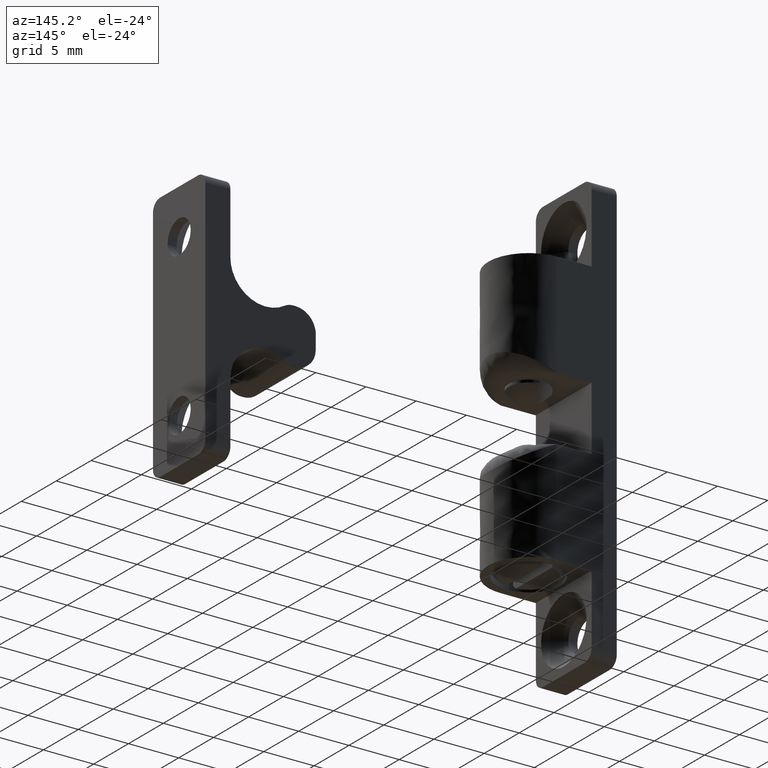
[diagram: clean part render]
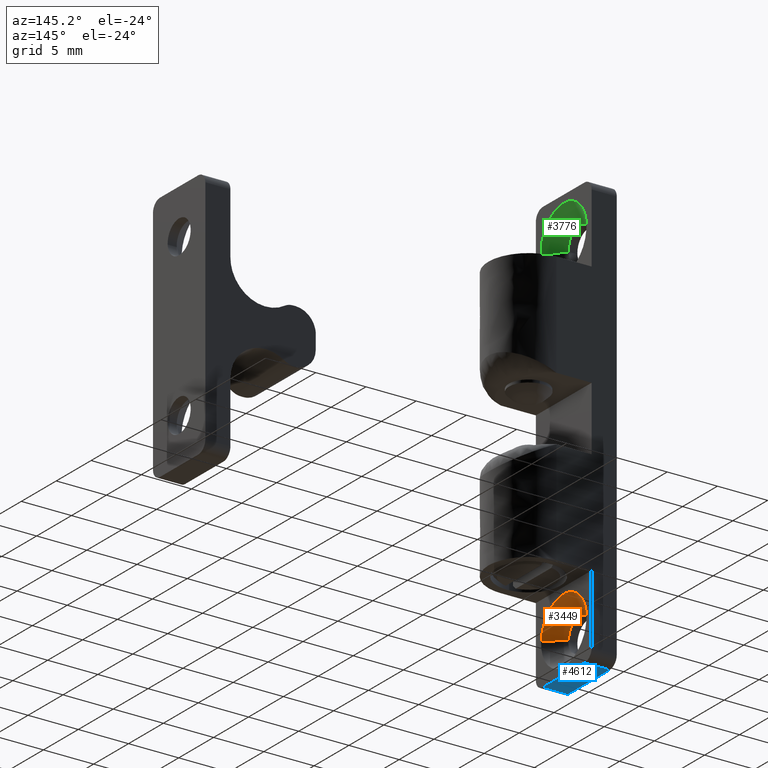
[diagram: same view with three faces highlighted in distinct colors, each labeled with its STEP entity id]
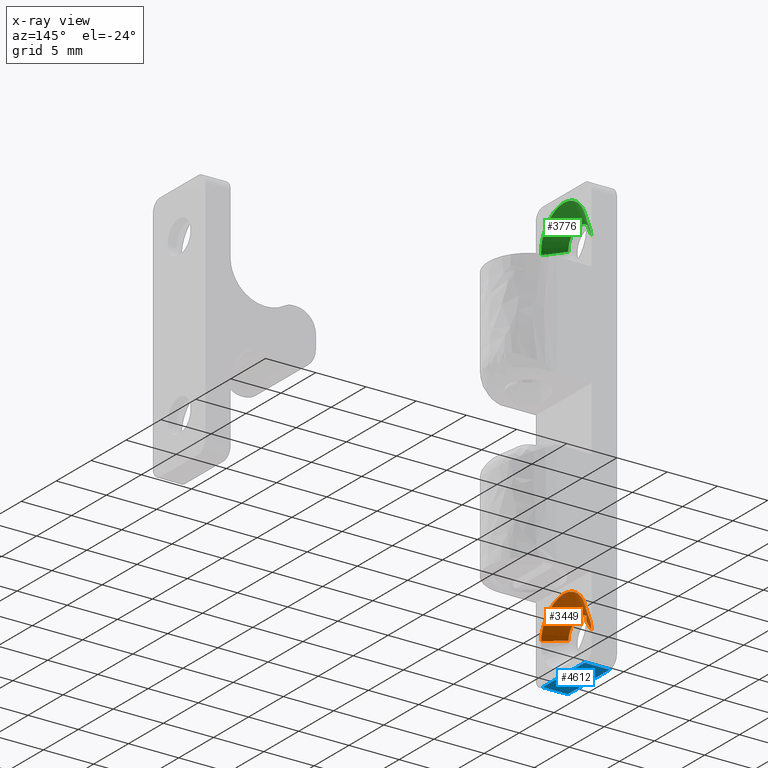
[diagram: x-ray of the same camera — body ghosted, the three highlighted faces saturated]
A machine part, auxiliary view with three faces highlighted in distinct colors.
The next image is the same camera in x-ray (body ghosted, the three faces saturated) — at least one of them is partly hidden behind the body in this view.
Their STEP definitions:

[orange] entity #3449 — the highlighted face is a freeform B-spline surface patch.
#3183=CARTESIAN_POINT('',(17.694756487253780,1.638465718500732,0.900000000008982));
#3184=VERTEX_POINT('',#3183);
#3185=CARTESIAN_POINT('',(16.108983919377160,0.887453809191597,0.900000000000026));
#3186=VERTEX_POINT('',#3185);
#3187=CARTESIAN_POINT('',(17.694756487253777,1.638465718500733,0.900000000008982));
#3188=CARTESIAN_POINT('',(17.597719797495454,1.650000000000000,0.900000000000026));
#3189=CARTESIAN_POINT('',(17.500000000000000,1.650000000000000,0.900000000000026));
#3190=CARTESIAN_POINT('',(16.595480467584000,1.650000000000000,0.900000000000026));
#3191=CARTESIAN_POINT('',(16.108983919377163,0.887453809191597,0.900000000000026));
#3199=(BOUNDED_CURVE()B_SPLINE_CURVE(2,(#3187,#3188,#3189,#3190,#3191),.UNSPECIFIED.,.F.,.U.)B_SPLINE_CURVE_WITH_KNOTS((3,2,3),(0.229562473501395,0.250000000000000,0.407950112626393),.UNSPECIFIED.)CURVE()GEOMETRIC_REPRESENTATION_ITEM()RATIONAL_B_SPLINE_CURVE((0.956026754159957,0.976055948316954,1.0,0.814949932403634,0.863729296954209))REPRESENTATION_ITEM(''));
#3200=EDGE_CURVE('',#3184,#3186,#3199,.T.);
#3243=CARTESIAN_POINT('',(17.370542492015389,-1.644913600657012,0.900000000000026));
#3244=VERTEX_POINT('',#3243);
#3250=CARTESIAN_POINT('',(17.399269909718932,-1.646922417399449,0.900000000006353));
#3251=VERTEX_POINT('',#3250);
#3252=CARTESIAN_POINT('',(17.370542492015396,-1.644913600657012,0.900000000000026));
#3253=CARTESIAN_POINT('',(17.384897435487410,-1.646043359210222,0.900000000000026));
#3254=CARTESIAN_POINT('',(17.399269909718925,-1.646922417399449,0.900000000006353));
#3262=(BOUNDED_CURVE()B_SPLINE_CURVE(2,(#3252,#3253,#3254),.UNSPECIFIED.,.F.,.U.)B_SPLINE_CURVE_WITH_KNOTS((3,3),(0.736331300625751,0.739332962231874),.UNSPECIFIED.)CURVE()GEOMETRIC_REPRESENTATION_ITEM()RATIONAL_B_SPLINE_CURVE((0.969723356157174,0.972855475547299,0.976072041651568))REPRESENTATION_ITEM(''));
#3263=EDGE_CURVE('',#3244,#3251,#3262,.T.);
#3316=CARTESIAN_POINT('',(15.850000000000000,0.0,0.900000000000026));
#3317=VERTEX_POINT('',#3316);
#3318=CARTESIAN_POINT('',(16.108983919377160,0.887453809191597,0.900000000000026));
#3319=CARTESIAN_POINT('',(15.850000000000005,0.481516291382688,0.900000000000026));
#3320=CARTESIAN_POINT('',(15.850000000000000,0.0,0.900000000000026));
#3328=(BOUNDED_CURVE()B_SPLINE_CURVE(2,(#3318,#3319,#3320),.UNSPECIFIED.,.F.,.U.)B_SPLINE_CURVE_WITH_KNOTS((3,3),(0.407950112626393,0.500000000000000),.UNSPECIFIED.)CURVE()GEOMETRIC_REPRESENTATION_ITEM()RATIONAL_B_SPLINE_CURVE((0.863729296954209,0.892156848782914,1.0))REPRESENTATION_ITEM(''));
#3329=EDGE_CURVE('',#3186,#3317,#3328,.T.);
#3331=CARTESIAN_POINT('',(15.850000000000000,0.0,0.900000000000026));
#3332=CARTESIAN_POINT('',(15.850000000000003,-1.525244311173431,0.900000000000026));
#3333=CARTESIAN_POINT('',(17.370542492015392,-1.644913600657012,0.900000000000026));
#3341=(BOUNDED_CURVE()B_SPLINE_CURVE(2,(#3331,#3332,#3333),.UNSPECIFIED.,.F.,.U.)B_SPLINE_CURVE_WITH_KNOTS((3,3),(0.500000000000000,0.736331300625752),.UNSPECIFIED.)CURVE()GEOMETRIC_REPRESENTATION_ITEM()RATIONAL_B_SPLINE_CURVE((1.0,0.723120658613416,0.969723356157175))REPRESENTATION_ITEM(''));
#3342=EDGE_CURVE('',#3317,#3244,#3341,.T.);
#3377=CARTESIAN_POINT('',(17.690035117797375,1.598745337445504,0.860000000000027));
#3378=CARTESIAN_POINT('',(17.644279713107142,1.604184060872256,0.860000000000027));
#3379=CARTESIAN_POINT('',(17.598288148651118,1.606997025459206,0.860000000000027));
#3380=CARTESIAN_POINT('',(15.991291123191921,1.705285174110326,0.860000000000027));
#3381=CARTESIAN_POINT('',(15.893002974540790,0.098288148651120,0.860000000000027));
#3382=CARTESIAN_POINT('',(15.794714825889677,-1.508708876808086,0.860000000000027));
#3383=CARTESIAN_POINT('',(17.401711851348882,-1.606997025459206,0.860000000000027));
#3384=CARTESIAN_POINT('',(17.888450666255398,3.267994351262798,2.541000000000000));
#3385=CARTESIAN_POINT('',(17.794922071947582,3.279111642441333,2.541000000000000));
#3386=CARTESIAN_POINT('',(17.700910743609210,3.284861621606335,2.541000000000000));
#3387=CARTESIAN_POINT('',(14.416049122002878,3.485772365215548,2.541000000000000));
#3388=CARTESIAN_POINT('',(14.215138378393659,0.200910743609213,2.541000000000000));
#3389=CARTESIAN_POINT('',(14.014227634784451,-3.083950877997122,2.541000000000000));
#3390=CARTESIAN_POINT('',(17.299089256390790,-3.284861621606335,2.541000000000000));
#3398=(BOUNDED_SURFACE()B_SPLINE_SURFACE(2,1,((#3377,#3384),(#3378,#3385),(#3379,#3386),(#3380,#3387),(#3381,#3388),(#3382,#3389),(#3383,#3390)),.UNSPECIFIED.,.F.,.F.,.U.)B_SPLINE_SURFACE_WITH_KNOTS((3,2,2,3),(2,2),(0.0,0.218108293403175,5.670815628482552,11.123522963561930),(0.0,2.377292998349134),.UNSPECIFIED.)GEOMETRIC_REPRESENTATION_ITEM()RATIONAL_B_SPLINE_SURFACE(((0.977505800795127,0.977505800795127),(0.988284271247462,0.988284271247462),(1.0,1.0),(0.707106781186548,0.707106781186548),(1.0,1.0),(0.707106781186548,0.707106781186548),(1.0,1.0)))REPRESENTATION_ITEM('')SURFACE());
#3399=ORIENTED_EDGE('',*,*,#3200,.F.);
#3400=CARTESIAN_POINT('',(17.883611262849730,3.227280960683632,2.500000000027127));
#3401=VERTEX_POINT('',#3400);
#3402=CARTESIAN_POINT('',(17.694756487253780,1.638465718500732,0.900000000008982));
#3403=CARTESIAN_POINT('',(17.883611262849730,3.227280960683632,2.500000000027127));
#3404=QUASI_UNIFORM_CURVE('',1,(#3402,#3403),.UNSPECIFIED.,.F.,.U.);
#3405=EDGE_CURVE('',#3184,#3401,#3404,.T.);
#3406=ORIENTED_EDGE('',*,*,#3405,.T.);
#3407=CARTESIAN_POINT('',(14.250000000000000,0.0,2.500000000000000));
#3408=VERTEX_POINT('',#3407);
#3409=CARTESIAN_POINT('',(17.883611262849733,3.227280960683632,2.500000000027127));
#3410=CARTESIAN_POINT('',(17.692478389083014,3.250000000000000,2.500000000000000));
#3411=CARTESIAN_POINT('',(17.500000000000000,3.250000000000000,2.500000000000000));
#3412=CARTESIAN_POINT('',(14.249999999999998,3.250000000000000,2.500000000000000));
#3413=CARTESIAN_POINT('',(14.250000000000000,0.0,2.500000000000000));
#3421=(BOUNDED_CURVE()B_SPLINE_CURVE(2,(#3409,#3410,#3411,#3412,#3413),.UNSPECIFIED.,.F.,.U.)B_SPLINE_CURVE_WITH_KNOTS((3,2,3),(0.229562473493434,0.250000000000000,0.500000000000000),.UNSPECIFIED.)CURVE()GEOMETRIC_REPRESENTATION_ITEM()RATIONAL_B_SPLINE_CURVE((0.956026754144353,0.976055948307627,1.0,0.707106781186547,1.0))REPRESENTATION_ITEM(''));
#3422=EDGE_CURVE('',#3401,#3408,#3421,.T.);
#3423=ORIENTED_EDGE('',*,*,#3422,.T.);
#3424=CARTESIAN_POINT('',(17.301592246276879,-3.243938094887583,2.500000000030836));
#3425=VERTEX_POINT('',#3424);
#3426=CARTESIAN_POINT('',(14.250000000000000,0.0,2.500000000000000));
#3427=CARTESIAN_POINT('',(14.249999999999995,-3.057294717003595,2.500000000000000));
#3428=CARTESIAN_POINT('',(17.301592246276879,-3.243938094887583,2.500000000030836));
#3436=(BOUNDED_CURVE()B_SPLINE_CURVE(2,(#3426,#3427,#3428),.UNSPECIFIED.,.F.,.U.)B_SPLINE_CURVE_WITH_KNOTS((3,3),(0.500000000000000,0.739332962217187),.UNSPECIFIED.)CURVE()GEOMETRIC_REPRESENTATION_ITEM()RATIONAL_B_SPLINE_CURVE((1.0,0.719603993312199,0.976072041620091))REPRESENTATION_ITEM(''));
#3437=EDGE_CURVE('',#3408,#3425,#3436,.T.);
#3438=ORIENTED_EDGE('',*,*,#3437,.T.);
#3439=CARTESIAN_POINT('',(17.399269909718932,-1.646922417399449,0.900000000006353));
#3440=CARTESIAN_POINT('',(17.301592246276879,-3.243938094887583,2.500000000030836));
#3441=QUASI_UNIFORM_CURVE('',1,(#3439,#3440),.UNSPECIFIED.,.F.,.U.);
#3442=EDGE_CURVE('',#3251,#3425,#3441,.T.);
#3443=ORIENTED_EDGE('',*,*,#3442,.F.);
#3444=ORIENTED_EDGE('',*,*,#3263,.F.);
#3445=ORIENTED_EDGE('',*,*,#3342,.F.);
#3446=ORIENTED_EDGE('',*,*,#3329,.F.);
#3447=EDGE_LOOP('',(#3399,#3406,#3423,#3438,#3443,#3444,#3445,#3446));
#3448=FACE_OUTER_BOUND('',#3447,.T.);
#3449=ADVANCED_FACE('',(#3448),#3398,.F.);

[blue] entity #4612 — the highlighted face is a freeform B-spline surface patch.
#3887=CARTESIAN_POINT('',(21.500000000000000,3.0,2.500000000000000));
#3888=VERTEX_POINT('',#3887);
#3904=CARTESIAN_POINT('',(21.500000000000000,3.0,0.0));
#3905=VERTEX_POINT('',#3904);
#3906=CARTESIAN_POINT('',(21.500000000000000,3.0,0.0));
#3907=CARTESIAN_POINT('',(21.500000000000000,3.0,2.500000000000000));
#3908=QUASI_UNIFORM_CURVE('',1,(#3906,#3907),.UNSPECIFIED.,.F.,.U.);
#3909=EDGE_CURVE('',#3905,#3888,#3908,.T.);
#3950=CARTESIAN_POINT('',(21.500000000000000,-3.0,2.500000000000000));
#3951=VERTEX_POINT('',#3950);
#3972=CARTESIAN_POINT('',(21.500000000000000,-3.0,0.0));
#3973=VERTEX_POINT('',#3972);
#3987=CARTESIAN_POINT('',(21.500000000000000,-3.0,2.500000000000000));
#3988=CARTESIAN_POINT('',(21.500000000000000,-3.0,0.0));
#3989=QUASI_UNIFORM_CURVE('',1,(#3987,#3988),.UNSPECIFIED.,.F.,.U.);
#3990=EDGE_CURVE('',#3951,#3973,#3989,.T.);
#4576=CARTESIAN_POINT('',(21.500000000000000,-3.0,0.0));
#4577=CARTESIAN_POINT('',(21.500000000000000,3.0,0.0));
#4578=QUASI_UNIFORM_CURVE('',1,(#4576,#4577),.UNSPECIFIED.,.F.,.U.);
#4579=EDGE_CURVE('',#3973,#3905,#4578,.T.);
#4597=CARTESIAN_POINT('',(21.500000000000000,-3.299699988370836,2.624874995154515));
#4598=CARTESIAN_POINT('',(21.500000000000000,-3.299699988370836,-0.124875062209740));
#4599=CARTESIAN_POINT('',(21.500000000000000,3.299700149303377,2.624874995154515));
#4600=CARTESIAN_POINT('',(21.500000000000000,3.299700149303377,-0.124875062209740));
#4601=B_SPLINE_SURFACE_WITH_KNOTS('',1,1,((#4597,#4599),(#4598,#4600)),.UNSPECIFIED.,.F.,.F.,.U.,(2,2),(2,2),(0.0,2.749750057364255),(0.0,6.599400137674213),.UNSPECIFIED.);
#4602=CARTESIAN_POINT('',(21.500000000000000,-3.0,2.500000000000000));
#4603=CARTESIAN_POINT('',(21.500000000000000,3.0,2.500000000000000));
#4604=QUASI_UNIFORM_CURVE('',1,(#4602,#4603),.UNSPECIFIED.,.F.,.U.);
#4605=EDGE_CURVE('',#3951,#3888,#4604,.T.);
#4606=ORIENTED_EDGE('',*,*,#4605,.F.);
#4607=ORIENTED_EDGE('',*,*,#3990,.T.);
#4608=ORIENTED_EDGE('',*,*,#4579,.T.);
#4609=ORIENTED_EDGE('',*,*,#3909,.T.);
#4610=EDGE_LOOP('',(#4606,#4607,#4608,#4609));
#4611=FACE_OUTER_BOUND('',#4610,.T.);
#4612=ADVANCED_FACE('',(#4611),#4601,.T.);

[green] entity #3776 — the highlighted face is a freeform B-spline surface patch.
#3577=CARTESIAN_POINT('',(-17.392088055332010,-1.646420213212287,0.900000000001570));
#3578=VERTEX_POINT('',#3577);
#3626=CARTESIAN_POINT('',(-17.629457507974429,1.644913600660910,0.900000000003113));
#3627=VERTEX_POINT('',#3626);
#3643=CARTESIAN_POINT('',(-19.149999999999999,0.0,0.900000000000026));
#3644=VERTEX_POINT('',#3643);
#3645=CARTESIAN_POINT('',(-19.149999999999999,0.0,0.900000000000026));
#3646=CARTESIAN_POINT('',(-19.149999999999995,1.525244311192806,0.900000000000026));
#3647=CARTESIAN_POINT('',(-17.629457507974436,1.644913600660910,0.900000000003113));
#3655=(BOUNDED_CURVE()B_SPLINE_CURVE(2,(#3645,#3646,#3647),.UNSPECIFIED.,.F.,.U.)B_SPLINE_CURVE_WITH_KNOTS((3,3),(0.0,0.236331300627923),.UNSPECIFIED.)CURVE()GEOMETRIC_REPRESENTATION_ITEM()RATIONAL_B_SPLINE_CURVE((1.0,0.723120658610872,0.969723356161706))REPRESENTATION_ITEM(''));
#3656=EDGE_CURVE('',#3644,#3627,#3655,.T.);
#3658=CARTESIAN_POINT('',(-17.392088055332014,-1.646420213212287,0.900000000001570));
#3659=CARTESIAN_POINT('',(-17.445987695969279,-1.649953701733798,0.900000000001546));
#3660=CARTESIAN_POINT('',(-17.500002984101251,-1.649954471355732,0.900000000001520));
#3661=CARTESIAN_POINT('',(-19.150001443206005,-1.649977980903665,0.900000000000749));
#3662=CARTESIAN_POINT('',(-19.149999999999999,0.0,0.900000000000026));
#3670=(BOUNDED_CURVE()B_SPLINE_CURVE(2,(#3658,#3659,#3660,#3661,#3662),.UNSPECIFIED.,.F.,.U.)B_SPLINE_CURVE_WITH_KNOTS((3,2,3),(0.738580719742494,0.750000000000000,1.0),.UNSPECIFIED.)CURVE()GEOMETRIC_REPRESENTATION_ITEM()RATIONAL_B_SPLINE_CURVE((0.974465146454322,0.986621480995385,1.0,0.707106781186548,1.0))REPRESENTATION_ITEM(''));
#3671=EDGE_CURVE('',#3578,#3644,#3670,.T.);
#3710=CARTESIAN_POINT('',(-17.626319144121830,1.605036907310336,0.860000000000027));
#3711=CARTESIAN_POINT('',(-19.231356051432162,1.478717763188505,0.860000000000027));
#3712=CARTESIAN_POINT('',(-19.105036907310339,-0.126319144121831,0.860000000000027));
#3713=CARTESIAN_POINT('',(-18.978717763188509,-1.731356051432168,0.860000000000027));
#3714=CARTESIAN_POINT('',(-17.373680855878170,-1.605036907310336,0.860000000000027));
#3715=CARTESIAN_POINT('',(-17.758208884040339,3.280854945315694,2.541000000000000));
#3716=CARTESIAN_POINT('',(-21.039063829356028,3.022646061275358,2.541000000000000));
#3717=CARTESIAN_POINT('',(-20.780854945315699,-0.258208884040337,2.541000000000000));
#3718=CARTESIAN_POINT('',(-20.522646061275363,-3.539063829356032,2.541000000000000));
#3719=CARTESIAN_POINT('',(-17.241791115959661,-3.280854945315694,2.541000000000000));
#3727=(BOUNDED_SURFACE()B_SPLINE_SURFACE(2,1,((#3710,#3715),(#3711,#3716),(#3712,#3717),(#3713,#3718),(#3714,#3719)),.UNSPECIFIED.,.F.,.F.,.U.)B_SPLINE_SURFACE_WITH_KNOTS((3,2,3),(2,2),(0.0,5.452707335079376,10.905414670158750),(0.0,2.377292998349134),.UNSPECIFIED.)GEOMETRIC_REPRESENTATION_ITEM()RATIONAL_B_SPLINE_SURFACE(((1.0,1.0),(0.707106781186548,0.707106781186548),(1.0,1.0),(0.707106781186548,0.707106781186548),(1.0,1.0)))REPRESENTATION_ITEM('')SURFACE());
#3728=ORIENTED_EDGE('',*,*,#3656,.T.);
#3729=CARTESIAN_POINT('',(-17.754992061379220,3.239981334646352,2.500000000034349));
#3730=VERTEX_POINT('',#3729);
#3731=CARTESIAN_POINT('',(-17.629457507974429,1.644913600660910,0.900000000003113));
#3732=CARTESIAN_POINT('',(-17.754992061379220,3.239981334646352,2.500000000034349));
#3733=QUASI_UNIFORM_CURVE('',1,(#3731,#3732),.UNSPECIFIED.,.F.,.U.);
#3734=EDGE_CURVE('',#3627,#3730,#3733,.T.);
#3735=ORIENTED_EDGE('',*,*,#3734,.T.);
#3736=CARTESIAN_POINT('',(-20.750000000000000,0.0,2.500000000000000));
#3737=VERTEX_POINT('',#3736);
#3738=CARTESIAN_POINT('',(-20.750000000000000,0.0,2.500000000000000));
#3739=CARTESIAN_POINT('',(-20.750000000000011,3.004269097403607,2.500000000000000));
#3740=CARTESIAN_POINT('',(-17.754992061379216,3.239981334646353,2.500000000034349));
#3748=(BOUNDED_CURVE()B_SPLINE_CURVE(2,(#3738,#3739,#3740),.UNSPECIFIED.,.F.,.U.)B_SPLINE_CURVE_WITH_KNOTS((3,3),(0.0,0.236331300605146),.UNSPECIFIED.)CURVE()GEOMETRIC_REPRESENTATION_ITEM()RATIONAL_B_SPLINE_CURVE((1.0,0.723120658637557,0.969723356114172))REPRESENTATION_ITEM(''));
#3749=EDGE_CURVE('',#3737,#3730,#3748,.T.);
#3750=ORIENTED_EDGE('',*,*,#3749,.F.);
#3751=CARTESIAN_POINT('',(-17.245007938620791,-3.239981334646352,2.500000000034349));
#3752=VERTEX_POINT('',#3751);
#3753=CARTESIAN_POINT('',(-17.245007938620784,-3.239981334646352,2.500000000034349));
#3754=CARTESIAN_POINT('',(-17.372307151962847,-3.250000000000000,2.500000000000001));
#3755=CARTESIAN_POINT('',(-17.500000000000000,-3.250000000000000,2.500000000000000));
#3756=CARTESIAN_POINT('',(-20.750000000000000,-3.250000000000000,2.500000000000000));
#3757=CARTESIAN_POINT('',(-20.750000000000000,0.0,2.500000000000000));
#3765=(BOUNDED_CURVE()B_SPLINE_CURVE(2,(#3753,#3754,#3755,#3756,#3757),.UNSPECIFIED.,.F.,.U.)B_SPLINE_CURVE_WITH_KNOTS((3,2,3),(0.736331300605146,0.750000000000000,1.0),.UNSPECIFIED.)CURVE()GEOMETRIC_REPRESENTATION_ITEM()RATIONAL_B_SPLINE_CURVE((0.969723356114173,0.983986122548991,1.0,0.707106781186547,1.0))REPRESENTATION_ITEM(''));
#3766=EDGE_CURVE('',#3752,#3737,#3765,.T.);
#3767=ORIENTED_EDGE('',*,*,#3766,.F.);
#3768=CARTESIAN_POINT('',(-17.392088055332010,-1.646420213212287,0.900000000001570));
#3769=CARTESIAN_POINT('',(-17.245007938620791,-3.239981334646352,2.500000000034349));
#3770=QUASI_UNIFORM_CURVE('',1,(#3768,#3769),.UNSPECIFIED.,.F.,.U.);
#3771=EDGE_CURVE('',#3578,#3752,#3770,.T.);
#3772=ORIENTED_EDGE('',*,*,#3771,.F.);
#3773=ORIENTED_EDGE('',*,*,#3671,.T.);
#3774=EDGE_LOOP('',(#3728,#3735,#3750,#3767,#3772,#3773));
#3775=FACE_OUTER_BOUND('',#3774,.T.);
#3776=ADVANCED_FACE('',(#3775),#3727,.F.);